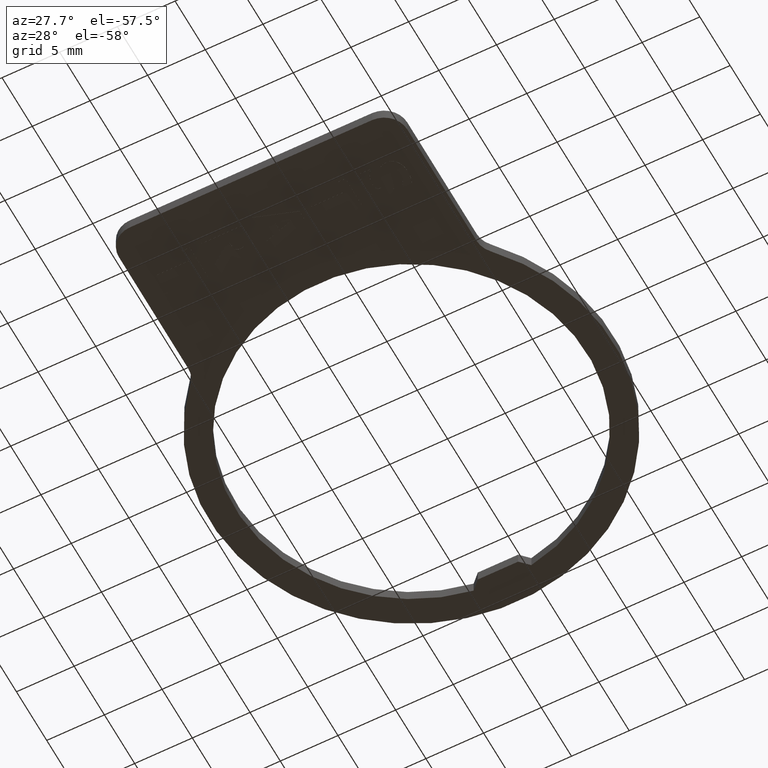
[diagram: clean part render]
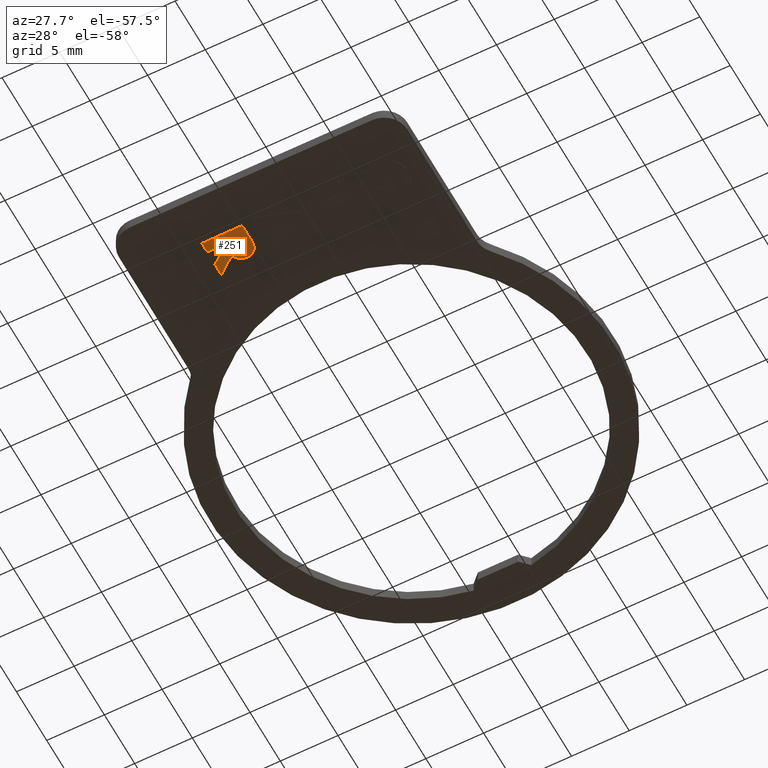
[diagram: same view with one face highlighted and labeled with its STEP entity id]
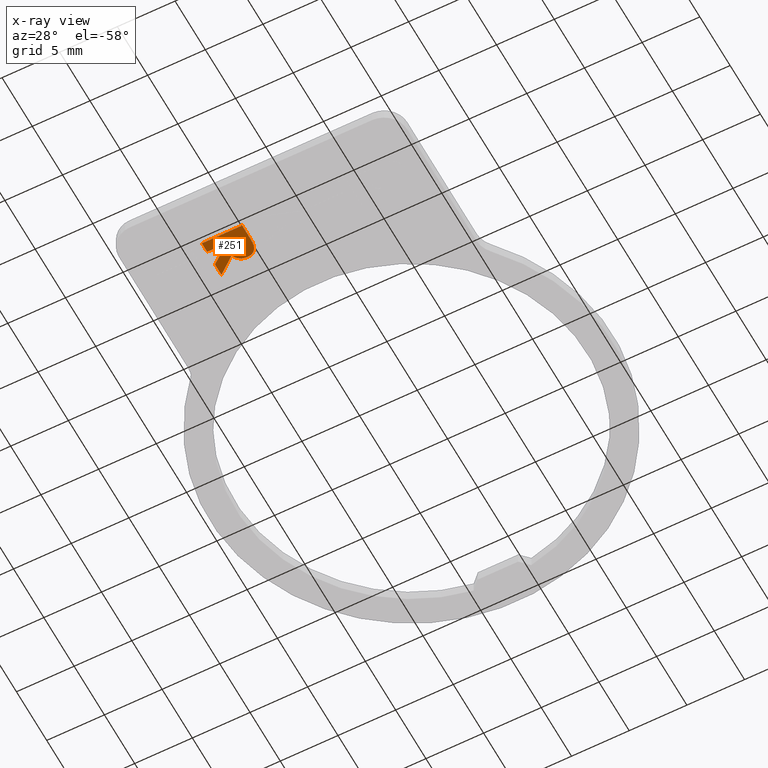
[diagram: x-ray of the same camera — body ghosted, the highlighted face saturated]
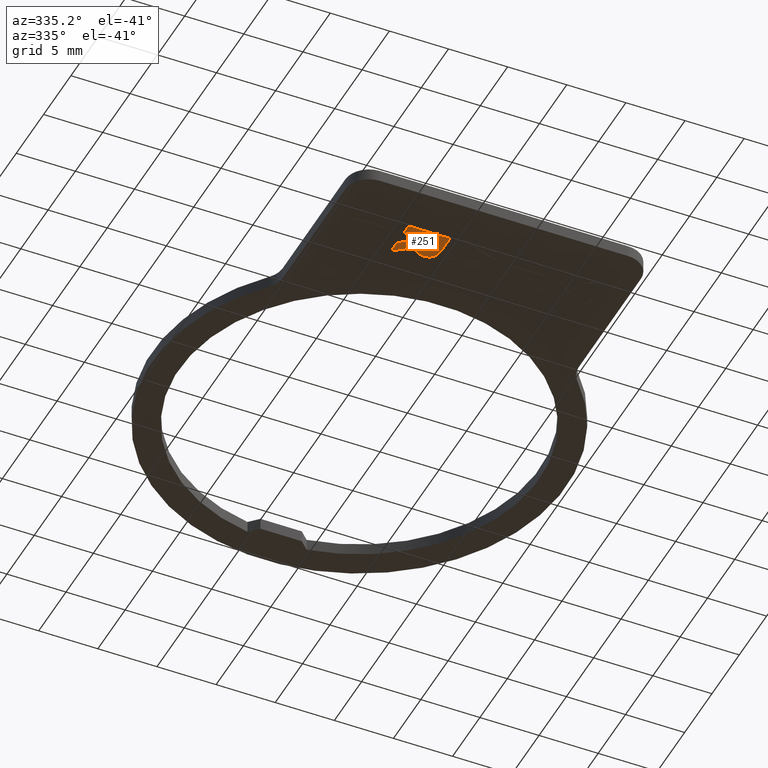
[diagram: same view with one face highlighted and labeled with its STEP entity id]
A machine part, auxiliary view. The second image highlights one B-rep face of the part: STEP entity #251.
The next image is the same camera in x-ray: the body ghosted, the highlighted face saturated — about 0% of this face is hidden behind the body in this view.
A second angle (auxiliary view) of the same face is appended — the face is thin or edge-on in the first view.
In plain terms, the highlighted planar face has unit normal (0, 0, 1).
Its self-contained STEP definition (entity closure, byte-faithful):
#68=CARTESIAN_POINT('',(-7.398424810307674,-2.851746310758943,-0.010000000000000));
#69=DIRECTION('',(0.0,0.0,1.0));
#70=DIRECTION('',(1.0,0.0,0.0));
#71=AXIS2_PLACEMENT_3D('',#68,#69,#70);
#72=PLANE('',#71);
#73=CARTESIAN_POINT('',(-13.679624116557283,-15.807216732283468,-0.010000000000003));
#74=VERTEX_POINT('',#73);
#75=CARTESIAN_POINT('',(-12.190564174330731,-16.984283162805408,-0.010000000000003));
#76=VERTEX_POINT('',#75);
#77=CARTESIAN_POINT('',(-13.679624116557283,-15.807216732283468,-0.010000000000003));
#78=DIRECTION('',(0.784500119596252,-0.620128665966561,0.0));
#79=VECTOR('',#78,1.898100338076310);
#80=LINE('',#77,#79);
#81=EDGE_CURVE('',#74,#76,#80,.T.);
#82=ORIENTED_EDGE('',*,*,#81,.T.);
#83=CARTESIAN_POINT('',(-11.141131453142496,-16.317751569618288,-0.010000000000003));
#84=VERTEX_POINT('',#83);
#85=CARTESIAN_POINT('',(-12.190564174330733,-16.984283162805408,-0.009999999999998));
#86=CARTESIAN_POINT('',(-12.117309035567656,-16.833546627273691,-0.009999999999998));
#87=CARTESIAN_POINT('',(-12.021419278697403,-16.698214645430706,-0.010000000000003));
#88=CARTESIAN_POINT('',(-11.770640518037677,-16.469199728464410,-0.010000000000003));
#89=CARTESIAN_POINT('',(-11.660489713578952,-16.418903452768532,-0.010000000000003));
#90=CARTESIAN_POINT('',(-11.455219831859683,-16.338405012822335,-0.010000000000003));
#91=CARTESIAN_POINT('',(-11.296896914209249,-16.317751569618288,-0.010000000000001));
#92=CARTESIAN_POINT('',(-11.141131453142497,-16.317751569618288,-0.010000000000001));
#93=B_SPLINE_CURVE_WITH_KNOTS('',3,(#85,#86,#87,#88,#89,#90,#91,#92),.UNSPECIFIED.,.F.,.U.,(4,2,2,4),(-0.084964115025593,-0.066094853256581,-0.046729638320026,0.0),.UNSPECIFIED.);
#94=EDGE_CURVE('',#76,#84,#93,.T.);
#95=ORIENTED_EDGE('',*,*,#94,.T.);
#96=CARTESIAN_POINT('',(-10.366820283184692,-16.726179439486138,-0.010000000000003));
#97=VERTEX_POINT('',#96);
#98=CARTESIAN_POINT('',(-11.141131453142497,-16.317751569618288,-0.009999999999997));
#99=CARTESIAN_POINT('',(-11.042417140950741,-16.317751569618288,-0.009999999999997));
#100=CARTESIAN_POINT('',(-10.941883150367540,-16.327800810139195,-0.010000000000003));
#101=CARTESIAN_POINT('',(-10.769037049244547,-16.376274774955441,-0.010000000000003));
#102=CARTESIAN_POINT('',(-10.695363023894631,-16.409054934247543,-0.010000000000003));
#103=CARTESIAN_POINT('',(-10.515639609781193,-16.534187659625015,-0.010000000000003));
#104=CARTESIAN_POINT('',(-10.432917680467156,-16.622312100899414,-0.010000000000001));
#105=CARTESIAN_POINT('',(-10.366820283184694,-16.726179439486138,-0.010000000000001));
#106=B_SPLINE_CURVE_WITH_KNOTS('',3,(#98,#99,#100,#101,#102,#103,#104,#105),.UNSPECIFIED.,.F.,.U.,(4,2,2,4),(-0.100881785267607,-0.065698141083052,-0.036934483829269,0.0),.UNSPECIFIED.);
#107=EDGE_CURVE('',#84,#97,#106,.T.);
#108=ORIENTED_EDGE('',*,*,#107,.T.);
#109=CARTESIAN_POINT('',(-10.179624176161928,-17.633796928081370,-0.010000000000003));
#110=VERTEX_POINT('',#109);
#111=CARTESIAN_POINT('',(-10.366820283184694,-16.726179439486138,-0.009999999999998));
#112=CARTESIAN_POINT('',(-10.258608934756372,-16.902022880682161,-0.009999999999998));
#113=CARTESIAN_POINT('',(-10.228212352266912,-17.057603596326018,-0.010000000000003));
#114=CARTESIAN_POINT('',(-10.188511989712868,-17.289698023565052,-0.010000000000003));
#115=CARTESIAN_POINT('',(-10.179624176161928,-17.468178437144228,-0.009999999999999));
#116=CARTESIAN_POINT('',(-10.179624176161928,-17.633796928081370,-0.009999999999999));
#117=B_SPLINE_CURVE_WITH_KNOTS('',3,(#111,#112,#113,#114,#115,#116),.UNSPECIFIED.,.F.,.U.,(4,2,4),(-0.070487560194995,-0.049685547281143,0.0),.UNSPECIFIED.);
#118=EDGE_CURVE('',#97,#110,#117,.T.);
#119=ORIENTED_EDGE('',*,*,#118,.T.);
#120=CARTESIAN_POINT('',(-10.179624176161926,-19.040604035403977,-0.010000000000003));
#121=VERTEX_POINT('',#120);
#122=CARTESIAN_POINT('',(-10.179624176161928,-17.633796928081370,-0.010000000000003));
#123=DIRECTION('',(0.0,-1.0,0.0));
#124=VECTOR('',#123,1.406807107322607);
#125=LINE('',#122,#124);
#126=EDGE_CURVE('',#110,#121,#125,.T.);
#127=ORIENTED_EDGE('',*,*,#126,.T.);
#128=CARTESIAN_POINT('',(-13.679624116557282,-19.040604035403977,-0.010000000000003));
#129=VERTEX_POINT('',#128);
#130=CARTESIAN_POINT('',(-10.179624176161926,-19.040604035403977,-0.010000000000003));
#131=DIRECTION('',(-1.0,0.0,0.0));
#132=VECTOR('',#131,3.499999940395355);
#133=LINE('',#130,#132);
#134=EDGE_CURVE('',#121,#129,#133,.T.);
#135=ORIENTED_EDGE('',*,*,#134,.T.);
#136=CARTESIAN_POINT('',(-13.679624116557282,-18.167022202631067,-0.010000000000003));
#137=VERTEX_POINT('',#136);
#138=CARTESIAN_POINT('',(-13.679624116557282,-19.040604035403977,-0.010000000000003));
#139=DIRECTION('',(0.0,1.0,0.0));
#140=VECTOR('',#139,0.873581832772910);
#141=LINE('',#138,#140);
#142=EDGE_CURVE('',#129,#137,#141,.T.);
#143=ORIENTED_EDGE('',*,*,#142,.T.);
#144=CARTESIAN_POINT('',(-12.394778109264660,-18.167022202631067,-0.010000000000003));
#145=VERTEX_POINT('',#144);
#146=CARTESIAN_POINT('',(-13.679624116557282,-18.167022202631067,-0.010000000000003));
#147=DIRECTION('',(1.0,0.0,0.0));
#148=VECTOR('',#147,1.284846007292622);
#149=LINE('',#146,#148);
#150=EDGE_CURVE('',#137,#145,#149,.T.);
#151=ORIENTED_EDGE('',*,*,#150,.T.);
#152=CARTESIAN_POINT('',(-12.394778109264662,-17.849356081622737,-0.010000000000003));
#153=VERTEX_POINT('',#152);
#154=CARTESIAN_POINT('',(-12.394778109264660,-18.167022202631067,-0.010000000000003));
#155=DIRECTION('',(0.0,1.0,0.0));
#156=VECTOR('',#155,0.317666121008330);
#157=LINE('',#154,#156);
#158=EDGE_CURVE('',#145,#153,#157,.T.);
#159=ORIENTED_EDGE('',*,*,#158,.T.);
#160=CARTESIAN_POINT('',(-13.679624116557283,-16.876503586034726,-0.010000000000003));
#161=VERTEX_POINT('',#160);
#162=CARTESIAN_POINT('',(-12.394778109264662,-17.849356081622737,-0.010000000000003));
#163=DIRECTION('',(-0.797246141356458,0.603654363102130,0.0));
#164=VECTOR('',#163,1.611605175167793);
#165=LINE('',#162,#164);
#166=EDGE_CURVE('',#153,#161,#165,.T.);
#167=ORIENTED_EDGE('',*,*,#166,.T.);
#168=CARTESIAN_POINT('',(-13.679624116557283,-16.876503586034726,-0.010000000000003));
#169=DIRECTION('',(0.0,1.0,0.0));
#170=VECTOR('',#169,1.069286853751258);
#171=LINE('',#168,#170);
#172=EDGE_CURVE('',#161,#74,#171,.T.);
#173=ORIENTED_EDGE('',*,*,#172,.T.);
#174=EDGE_LOOP('',(#82,#95,#108,#119,#127,#135,#143,#151,#159,#167,#173));
#175=FACE_OUTER_BOUND('',#174,.T.);
#176=CARTESIAN_POINT('',(-10.823465332134170,-17.872046518837621,-0.010000000000003));
#177=VERTEX_POINT('',#176);
#178=CARTESIAN_POINT('',(-10.877355120519512,-17.438091907103026,-0.010000000000003));
#179=VERTEX_POINT('',#178);
#180=CARTESIAN_POINT('',(-10.823465332134170,-17.872046518837617,-0.009999999999997));
#181=CARTESIAN_POINT('',(-10.823465332134170,-17.792546208119351,-0.009999999999997));
#182=CARTESIAN_POINT('',(-10.825547723447198,-17.700600974685464,-0.010000000000003));
#183=CARTESIAN_POINT('',(-10.836383962906051,-17.590690545888524,-0.010000000000003));
#184=CARTESIAN_POINT('',(-10.844496814106378,-17.517499480934760,-0.009999999999998));
#185=CARTESIAN_POINT('',(-10.877355120519512,-17.438091907103022,-0.009999999999998));
#186=B_SPLINE_CURVE_WITH_KNOTS('',3,(#180,#181,#182,#183,#184,#185),.UNSPECIFIED.,.F.,.U.,(4,2,4),(-0.093386376175172,-0.025781210161596,0.0),.UNSPECIFIED.);
#187=EDGE_CURVE('',#177,#179,#186,.T.);
#188=ORIENTED_EDGE('',*,*,#187,.T.);
#189=CARTESIAN_POINT('',(-11.251747334565042,-17.219696448909797,-0.010000000000003));
#190=VERTEX_POINT('',#189);
#191=CARTESIAN_POINT('',(-10.877355120519512,-17.438091907103022,-0.009999999999998));
#192=CARTESIAN_POINT('',(-10.896538265940341,-17.394396964755579,-0.009999999999998));
#193=CARTESIAN_POINT('',(-10.922041818361762,-17.353816620590326,-0.010000000000003));
#194=CARTESIAN_POINT('',(-10.977196118779666,-17.299692568908785,-0.010000000000003));
#195=CARTESIAN_POINT('',(-11.009838701471026,-17.273610881725844,-0.010000000000003));
#196=CARTESIAN_POINT('',(-11.122251853188825,-17.228664265986129,-0.010000000000003));
#197=CARTESIAN_POINT('',(-11.187233807995455,-17.219696448909797,-0.009999999999998));
#198=CARTESIAN_POINT('',(-11.251747334565042,-17.219696448909797,-0.009999999999998));
#199=B_SPLINE_CURVE_WITH_KNOTS('',3,(#191,#192,#193,#194,#195,#196,#197,#198),.UNSPECIFIED.,.F.,.U.,(4,2,2,4),(-0.063679790815297,-0.036298357731509,-0.019354057970877,0.0),.UNSPECIFIED.);
#200=EDGE_CURVE('',#179,#190,#199,.T.);
#201=ORIENTED_EDGE('',*,*,#200,.T.);
#202=CARTESIAN_POINT('',(-11.648829985825454,-17.387038423369543,-0.010000000000003));
#203=VERTEX_POINT('',#202);
#204=CARTESIAN_POINT('',(-11.251747334565042,-17.219696448909797,-0.009999999999998));
#205=CARTESIAN_POINT('',(-11.301837242673276,-17.219696448909797,-0.009999999999998));
#206=CARTESIAN_POINT('',(-11.354136110513661,-17.223254155850313,-0.010000000000003));
#207=CARTESIAN_POINT('',(-11.449153377396289,-17.242935679275671,-0.010000000000003));
#208=CARTESIAN_POINT('',(-11.485011393694966,-17.256716458538776,-0.010000000000003));
#209=CARTESIAN_POINT('',(-11.568983322923572,-17.302887335078005,-0.010000000000003));
#210=CARTESIAN_POINT('',(-11.612258334764046,-17.341323859542783,-0.009999999999998));
#211=CARTESIAN_POINT('',(-11.648829985825454,-17.387038423369543,-0.009999999999998));
#212=B_SPLINE_CURVE_WITH_KNOTS('',3,(#204,#205,#206,#207,#208,#209,#210,#211),.UNSPECIFIED.,.F.,.U.,(4,2,2,4),(-0.040706104588794,-0.028746529150847,-0.017562961898569,0.0),.UNSPECIFIED.);
#213=EDGE_CURVE('',#190,#203,#212,.T.);
#214=ORIENTED_EDGE('',*,*,#213,.T.);
#215=CARTESIAN_POINT('',(-11.765118476551720,-17.914591088615520,-0.010000000000003));
#216=VERTEX_POINT('',#215);
#217=CARTESIAN_POINT('',(-11.648829985825454,-17.387038423369543,-0.009999999999998));
#218=CARTESIAN_POINT('',(-11.698979316232160,-17.449223593073857,-0.009999999999998));
#219=CARTESIAN_POINT('',(-11.728595650277574,-17.525344016462270,-0.009999999999998));
#220=CARTESIAN_POINT('',(-11.742428039336840,-17.604015729236842,-0.009999999999998));
#221=CARTESIAN_POINT('',(-11.760403046065910,-17.706248580008442,-0.009999999999999));
#222=CARTESIAN_POINT('',(-11.765118476551720,-17.810790045057182,-0.009999999999999));
#223=CARTESIAN_POINT('',(-11.765118476551720,-17.914591088615520,-0.009999999999999));
#224=B_SPLINE_CURVE_WITH_KNOTS('',3,(#217,#218,#219,#220,#221,#222,#223),.UNSPECIFIED.,.F.,.U.,(4,3,4),(-0.055103860468030,-0.031140313067501,0.0),.UNSPECIFIED.);
#225=EDGE_CURVE('',#203,#216,#224,.T.);
#226=ORIENTED_EDGE('',*,*,#225,.T.);
#227=CARTESIAN_POINT('',(-11.765118476551716,-18.167022202631067,-0.010000000000003));
#228=VERTEX_POINT('',#227);
#229=CARTESIAN_POINT('',(-11.765118476551720,-17.914591088615520,-0.010000000000003));
#230=DIRECTION('',(0.0,-1.0,0.0));
#231=VECTOR('',#230,0.252431114015547);
#232=LINE('',#229,#231);
#233=EDGE_CURVE('',#216,#228,#232,.T.);
#234=ORIENTED_EDGE('',*,*,#233,.T.);
#235=CARTESIAN_POINT('',(-10.823465332134168,-18.167022202631067,-0.010000000000003));
#236=VERTEX_POINT('',#235);
#237=CARTESIAN_POINT('',(-11.765118476551716,-18.167022202631067,-0.010000000000003));
#238=DIRECTION('',(1.0,0.0,0.0));
#239=VECTOR('',#238,0.941653144417549);
#240=LINE('',#237,#239);
#241=EDGE_CURVE('',#228,#236,#240,.T.);
#242=ORIENTED_EDGE('',*,*,#241,.T.);
#243=CARTESIAN_POINT('',(-10.823465332134168,-18.167022202631067,-0.010000000000003));
#244=DIRECTION('',(0.0,1.0,0.0));
#245=VECTOR('',#244,0.294975683793446);
#246=LINE('',#243,#245);
#247=EDGE_CURVE('',#236,#177,#246,.T.);
#248=ORIENTED_EDGE('',*,*,#247,.T.);
#249=EDGE_LOOP('',(#188,#201,#214,#226,#234,#242,#248));
#250=FACE_BOUND('',#249,.T.);
#251=ADVANCED_FACE('',(#175,#250),#72,.F.);